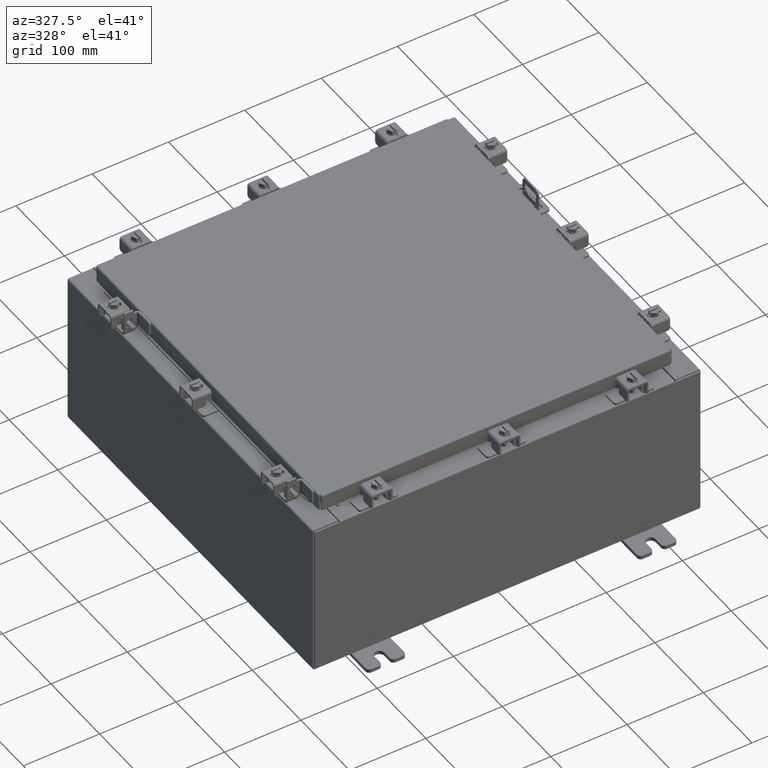
[diagram: clean part render]
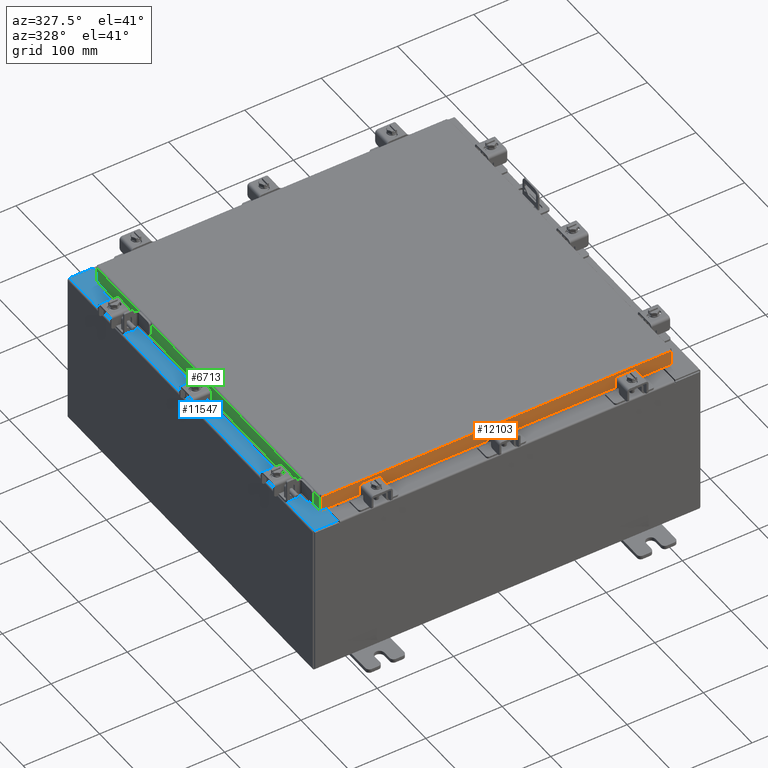
[diagram: same view with three faces highlighted in distinct colors, each labeled with its STEP entity id]
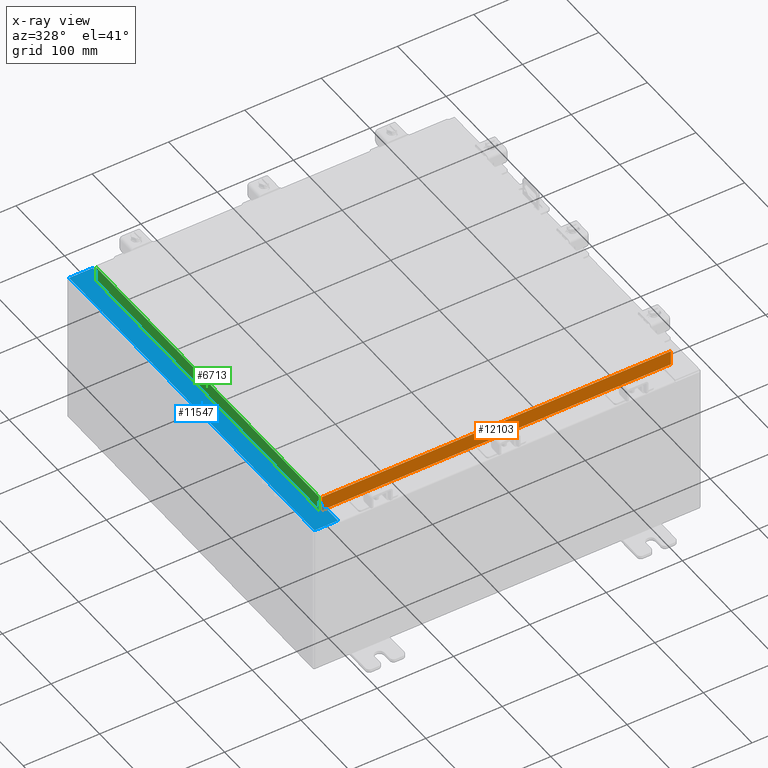
[diagram: x-ray of the same camera — body ghosted, the three highlighted faces saturated]
A machine part, auxiliary view with three faces highlighted in distinct colors.
The next image is the same camera in x-ray (body ghosted, the three faces saturated) — at least one of them is partly hidden behind the body in this view.
Their STEP definitions:

[orange] entity #12103 — the highlighted planar face has unit normal (-0, 1, -0).
#1455 = ORIENTED_EDGE ( 'NONE', *, *, #6380, .F. ) ;
#2338 = DIRECTION ( 'NONE',  ( -0.0000000000000000000, -2.818880942772360100E-015, -1.000000000000000000 ) ) ;
#2946 = VERTEX_POINT ( 'NONE', #19640 ) ;
#3671 = CARTESIAN_POINT ( 'NONE',  ( -8.255157864376267100, -9.094000000000001200, -0.8500000000000020900 ) ) ;
#3774 = VECTOR ( 'NONE', #15888, 39.37007874015748100 ) ;
#4089 = FACE_OUTER_BOUND ( 'NONE', #22401, .T. ) ;
#4571 = EDGE_CURVE ( 'NONE', #2946, #21468, #11397, .T. ) ;
#5543 = CARTESIAN_POINT ( 'NONE',  ( 9.005157864376270600, -9.093999999999999400, -0.08770000000000026400 ) ) ;
#5568 = DIRECTION ( 'NONE',  ( 1.000000000000000000, 3.387180227794633400E-031, -9.232666117091638000E-046 ) ) ;
#6197 = ORIENTED_EDGE ( 'NONE', *, *, #4571, .F. ) ;
#6380 = EDGE_CURVE ( 'NONE', #8356, #20213, #7528, .T. ) ;
#6917 = DIRECTION ( 'NONE',  ( 0.0000000000000000000, 2.818880942772360100E-015, 1.000000000000000000 ) ) ;
#7305 = VERTEX_POINT ( 'NONE', #5543 ) ;
#7422 = VECTOR ( 'NONE', #2338, 39.37007874015748100 ) ;
#7528 = LINE ( 'NONE', #7917, #20859 ) ;
#7914 = ORIENTED_EDGE ( 'NONE', *, *, #8136, .F. ) ;
#7917 = CARTESIAN_POINT ( 'NONE',  ( 9.094000000000001200, -9.094000000000001200, -0.8499999999999999800 ) ) ;
#8136 = EDGE_CURVE ( 'NONE', #21468, #8356, #10193, .T. ) ;
#8160 = LINE ( 'NONE', #21155, #11160 ) ;
#8333 = CARTESIAN_POINT ( 'NONE',  ( 8.255157864376267100, -9.094000000000001200, -0.8500000000000020900 ) ) ;
#8356 = VERTEX_POINT ( 'NONE', #3671 ) ;
#8716 = VECTOR ( 'NONE', #15576, 39.37007874015748100 ) ;
#9386 = EDGE_CURVE ( 'NONE', #7305, #2946, #21863, .T. ) ;
#10193 = LINE ( 'NONE', #17306, #22459 ) ;
#10331 = CARTESIAN_POINT ( 'NONE',  ( -9.005157864376267100, -9.093999999999999400, -0.08770000000000026400 ) ) ;
#10713 = VERTEX_POINT ( 'NONE', #10331 ) ;
#10827 = AXIS2_PLACEMENT_3D ( 'NONE', #12121, #17370, #6917 ) ;
#11160 = VECTOR ( 'NONE', #5568, 39.37007874015748100 ) ;
#11397 = LINE ( 'NONE', #16036, #3774 ) ;
#12103 = ADVANCED_FACE ( 'NONE', ( #4089 ), #15623, .F. ) ;
#12121 = CARTESIAN_POINT ( 'NONE',  ( 0.0000000000000000000, -9.093999999999999400, 2.622574073917692700E-014 ) ) ;
#12189 = EDGE_CURVE ( 'NONE', #10713, #7305, #8160, .T. ) ;
#12289 = CARTESIAN_POINT ( 'NONE',  ( -9.005157864376267100, -9.094000000000001200, -0.8499999999999977600 ) ) ;
#13184 = ORIENTED_EDGE ( 'NONE', *, *, #17301, .T. ) ;
#13834 = CARTESIAN_POINT ( 'NONE',  ( -9.005157864376267100, -9.093999999999999400, 2.622574073917692700E-014 ) ) ;
#15546 = DIRECTION ( 'NONE',  ( -1.000000000000000000, 0.0000000000000000000, 0.0000000000000000000 ) ) ;
#15576 = DIRECTION ( 'NONE',  ( 0.0000000000000000000, -2.818880942772360100E-015, -1.000000000000000000 ) ) ;
#15623 = PLANE ( 'NONE',  #10827 ) ;
#15888 = DIRECTION ( 'NONE',  ( -1.000000000000000000, 4.379057701015054300E-047, 1.201604571657912400E-016 ) ) ;
#16036 = CARTESIAN_POINT ( 'NONE',  ( 9.094000000000001200, -9.094000000000001200, -0.8499999999999999800 ) ) ;
#16310 = CARTESIAN_POINT ( 'NONE',  ( 9.005157864376268900, -9.093999999999999400, -0.07470000000000015500 ) ) ;
#16628 = DIRECTION ( 'NONE',  ( -1.000000000000000000, 4.379057701015054300E-047, 1.201604571657912400E-016 ) ) ;
#17301 = EDGE_CURVE ( 'NONE', #10713, #20213, #18013, .T. ) ;
#17306 = CARTESIAN_POINT ( 'NONE',  ( 8.255157864376267100, -9.094000000000001200, -0.8500000000000020900 ) ) ;
#17370 = DIRECTION ( 'NONE',  ( -3.387180227794633400E-031, 1.000000000000000000, -2.818880942772360100E-015 ) ) ;
#18013 = LINE ( 'NONE', #13834, #8716 ) ;
#18475 = ORIENTED_EDGE ( 'NONE', *, *, #12189, .F. ) ;
#19640 = CARTESIAN_POINT ( 'NONE',  ( 9.005157864376268900, -9.094000000000001200, -0.8499999999999999800 ) ) ;
#20213 = VERTEX_POINT ( 'NONE', #12289 ) ;
#20740 = ORIENTED_EDGE ( 'NONE', *, *, #9386, .F. ) ;
#20859 = VECTOR ( 'NONE', #16628, 39.37007874015748100 ) ;
#21155 = CARTESIAN_POINT ( 'NONE',  ( 9.094000000000001200, -9.093999999999999400, -0.08770000000000026400 ) ) ;
#21468 = VERTEX_POINT ( 'NONE', #8333 ) ;
#21863 = LINE ( 'NONE', #16310, #7422 ) ;
#22401 = EDGE_LOOP ( 'NONE', ( #18475, #13184, #1455, #7914, #6197, #20740 ) ) ;
#22459 = VECTOR ( 'NONE', #15546, 39.37007874015748100 ) ;

[blue] entity #11547 — the highlighted planar face has unit normal (0, 0, -1).
#170 = ORIENTED_EDGE ( 'NONE', *, *, #737, .T. ) ;
#391 = EDGE_CURVE ( 'NONE', #19526, #15650, #8759, .T. ) ;
#556 = CARTESIAN_POINT ( 'NONE',  ( -8.699700000000026600, -9.925300000000005300, 7.925300000000008900 ) ) ;
#654 = CARTESIAN_POINT ( 'NONE',  ( -8.750050000000030100, 8.631099999999998200, 7.925300000000008900 ) ) ;
#667 = ORIENTED_EDGE ( 'NONE', *, *, #12500, .F. ) ;
#737 = EDGE_CURVE ( 'NONE', #15650, #2399, #16670, .T. ) ;
#1194 = DIRECTION ( 'NONE',  ( -1.000000000000000000, 0.0000000000000000000, 0.0000000000000000000 ) ) ;
#2283 = LINE ( 'NONE', #20634, #11021 ) ;
#2384 = LINE ( 'NONE', #13372, #16327 ) ;
#2399 = VERTEX_POINT ( 'NONE', #22560 ) ;
#2862 = DIRECTION ( 'NONE',  ( -1.000000000000000000, -2.170286390199908100E-014, -2.170286390199908100E-014 ) ) ;
#2912 = DIRECTION ( 'NONE',  ( 1.000000000000000000, -2.170286390199814100E-014, 2.170286390199814100E-014 ) ) ;
#3081 = DIRECTION ( 'NONE',  ( 1.000000000000000000, 0.0000000000000000000, 0.0000000000000000000 ) ) ;
#3742 = DIRECTION ( 'NONE',  ( -7.132762385546365800E-015, -0.0000000000000000000, 1.000000000000000000 ) ) ;
#3833 = DIRECTION ( 'NONE',  ( 7.132762385546365800E-015, 0.0000000000000000000, -1.000000000000000000 ) ) ;
#3972 = CIRCLE ( 'NONE', #15536, 0.01867499999999949400 ) ;
#4633 = CARTESIAN_POINT ( 'NONE',  ( -8.699700000000028400, 8.631100000000000000, 7.925300000000008900 ) ) ;
#4846 = EDGE_CURVE ( 'NONE', #9511, #2399, #2384, .T. ) ;
#4941 = DIRECTION ( 'NONE',  ( -7.132762385546365800E-015, -0.0000000000000000000, 1.000000000000000000 ) ) ;
#5101 = DIRECTION ( 'NONE',  ( -1.100963394019027400E-016, 1.000000000000000000, -7.852910284722381300E-031 ) ) ;
#5564 = CARTESIAN_POINT ( 'NONE',  ( -8.750050000000030100, -8.631100000000008900, 7.925300000000008900 ) ) ;
#5778 = DIRECTION ( 'NONE',  ( -1.100963394019027400E-016, 1.000000000000000000, -7.852910284722381300E-031 ) ) ;
#6040 = VERTEX_POINT ( 'NONE', #10962 ) ;
#6803 = AXIS2_PLACEMENT_3D ( 'NONE', #7245, #3742, #14204 ) ;
#7245 = CARTESIAN_POINT ( 'NONE',  ( -8.750050000000030100, -8.612425000000007100, 7.925300000000007100 ) ) ;
#7256 = ORIENTED_EDGE ( 'NONE', *, *, #10114, .F. ) ;
#7353 = LINE ( 'NONE', #11645, #8438 ) ;
#7556 = CARTESIAN_POINT ( 'NONE',  ( -8.712700000000030100, 8.593750000000000000, 7.925300000000007100 ) ) ;
#7976 = CARTESIAN_POINT ( 'NONE',  ( -8.699700000000028400, 8.631100000000000000, 7.925300000000008900 ) ) ;
#8115 = VERTEX_POINT ( 'NONE', #15621 ) ;
#8363 = EDGE_CURVE ( 'NONE', #9073, #6040, #2283, .T. ) ;
#8438 = VECTOR ( 'NONE', #1194, 39.37007874015748100 ) ;
#8708 = LINE ( 'NONE', #17307, #9273 ) ;
#8759 = LINE ( 'NONE', #13829, #21578 ) ;
#9040 = VERTEX_POINT ( 'NONE', #11849 ) ;
#9073 = VERTEX_POINT ( 'NONE', #11922 ) ;
#9158 = EDGE_CURVE ( 'NONE', #9246, #21181, #11247, .T. ) ;
#9246 = VERTEX_POINT ( 'NONE', #7976 ) ;
#9273 = VECTOR ( 'NONE', #5101, 39.37007874015748100 ) ;
#9298 = FACE_OUTER_BOUND ( 'NONE', #11998, .T. ) ;
#9511 = VERTEX_POINT ( 'NONE', #5564 ) ;
#9616 = CIRCLE ( 'NONE', #6803, 0.01867499999999949400 ) ;
#9801 = DIRECTION ( 'NONE',  ( -0.0000000000000000000, 1.000000000000000000, -0.0000000000000000000 ) ) ;
#9964 = VECTOR ( 'NONE', #18019, 39.37007874015748100 ) ;
#10114 = EDGE_CURVE ( 'NONE', #8115, #9511, #9616, .T. ) ;
#10255 = CARTESIAN_POINT ( 'NONE',  ( -8.750050000000030100, 8.593749999999998200, 7.925300000000008900 ) ) ;
#10303 = ORIENTED_EDGE ( 'NONE', *, *, #15253, .F. ) ;
#10477 = AXIS2_PLACEMENT_3D ( 'NONE', #12533, #3833, #16030 ) ;
#10771 = PLANE ( 'NONE',  #10477 ) ;
#10962 = CARTESIAN_POINT ( 'NONE',  ( -9.912300000000028500, 9.925299999999996500, 7.925300000000000000 ) ) ;
#11021 = VECTOR ( 'NONE', #13654, 39.37007874015748100 ) ;
#11222 = ORIENTED_EDGE ( 'NONE', *, *, #4846, .F. ) ;
#11247 = LINE ( 'NONE', #4633, #20492 ) ;
#11547 = ADVANCED_FACE ( 'NONE', ( #9298 ), #10771, .F. ) ;
#11645 = CARTESIAN_POINT ( 'NONE',  ( -8.712700000000030100, -8.593750000000008900, 7.925300000000007100 ) ) ;
#11777 = ORIENTED_EDGE ( 'NONE', *, *, #9158, .F. ) ;
#11849 = CARTESIAN_POINT ( 'NONE',  ( -8.712700000000030100, -8.593750000000008900, 7.925300000000007100 ) ) ;
#11891 = EDGE_CURVE ( 'NONE', #9040, #8115, #7353, .T. ) ;
#11922 = CARTESIAN_POINT ( 'NONE',  ( -8.699700000000028400, 9.925299999999998200, 7.925300000000008900 ) ) ;
#11962 = ORIENTED_EDGE ( 'NONE', *, *, #11891, .F. ) ;
#11998 = EDGE_LOOP ( 'NONE', ( #11777, #21177, #15360, #667, #19928, #170, #11222, #7256, #11962, #14555, #10303, #14575 ) ) ;
#12085 = EDGE_CURVE ( 'NONE', #9246, #9073, #8708, .T. ) ;
#12500 = EDGE_CURVE ( 'NONE', #19526, #6040, #19592, .T. ) ;
#12533 = CARTESIAN_POINT ( 'NONE',  ( -5.679009539018269400E-014, 0.0000000000000000000, 7.925300000000071100 ) ) ;
#13145 = CARTESIAN_POINT ( 'NONE',  ( -8.712700000000030100, 8.593749999999998200, 7.925300000000007100 ) ) ;
#13153 = VERTEX_POINT ( 'NONE', #13145 ) ;
#13241 = CARTESIAN_POINT ( 'NONE',  ( -9.912300000000028500, 9.925299999999998200, 7.925300000000000000 ) ) ;
#13372 = CARTESIAN_POINT ( 'NONE',  ( -8.750050000000030100, -8.631100000000008900, 7.925300000000007100 ) ) ;
#13654 = DIRECTION ( 'NONE',  ( -1.000000000000000000, 0.0000000000000000000, -7.132762385546365800E-015 ) ) ;
#13829 = CARTESIAN_POINT ( 'NONE',  ( -1.098862002691304900E-013, -9.925300000000053300, 7.925300000000071100 ) ) ;
#14204 = DIRECTION ( 'NONE',  ( 1.000000000000000000, 0.0000000000000000000, 0.0000000000000000000 ) ) ;
#14349 = EDGE_CURVE ( 'NONE', #13153, #9040, #14637, .T. ) ;
#14435 = VECTOR ( 'NONE', #9801, 39.37007874015748100 ) ;
#14555 = ORIENTED_EDGE ( 'NONE', *, *, #14349, .F. ) ;
#14575 = ORIENTED_EDGE ( 'NONE', *, *, #14698, .F. ) ;
#14637 = LINE ( 'NONE', #7556, #9964 ) ;
#14698 = EDGE_CURVE ( 'NONE', #21181, #20832, #3972, .T. ) ;
#15253 = EDGE_CURVE ( 'NONE', #20832, #13153, #17874, .T. ) ;
#15360 = ORIENTED_EDGE ( 'NONE', *, *, #8363, .T. ) ;
#15384 = CARTESIAN_POINT ( 'NONE',  ( -8.750050000000030100, 8.612424999999998200, 7.925300000000007100 ) ) ;
#15536 = AXIS2_PLACEMENT_3D ( 'NONE', #15384, #4941, #17137 ) ;
#15571 = DIRECTION ( 'NONE',  ( 1.000000000000000000, -5.349571789159775100E-015, 7.132762385546365800E-015 ) ) ;
#15621 = CARTESIAN_POINT ( 'NONE',  ( -8.750050000000030100, -8.593750000000008900, 7.925300000000008900 ) ) ;
#15650 = VERTEX_POINT ( 'NONE', #556 ) ;
#16030 = DIRECTION ( 'NONE',  ( -1.000000000000000000, 0.0000000000000000000, -7.132762385546365800E-015 ) ) ;
#16215 = CARTESIAN_POINT ( 'NONE',  ( -8.699700000000026600, -9.578051238947299100E-016, 7.925300000000008900 ) ) ;
#16327 = VECTOR ( 'NONE', #2912, 39.37007874015748100 ) ;
#16670 = LINE ( 'NONE', #16215, #21836 ) ;
#17137 = DIRECTION ( 'NONE',  ( 1.000000000000000000, 0.0000000000000000000, 0.0000000000000000000 ) ) ;
#17307 = CARTESIAN_POINT ( 'NONE',  ( -8.699700000000026600, -9.578051238947299100E-016, 7.925300000000008900 ) ) ;
#17874 = LINE ( 'NONE', #20445, #21392 ) ;
#18019 = DIRECTION ( 'NONE',  ( -0.0000000000000000000, -1.000000000000000000, -0.0000000000000000000 ) ) ;
#19310 = CARTESIAN_POINT ( 'NONE',  ( -9.912300000000028500, -9.925299999999998200, 7.925300000000000000 ) ) ;
#19526 = VERTEX_POINT ( 'NONE', #19310 ) ;
#19592 = LINE ( 'NONE', #13241, #14435 ) ;
#19928 = ORIENTED_EDGE ( 'NONE', *, *, #391, .T. ) ;
#20445 = CARTESIAN_POINT ( 'NONE',  ( -8.750050000000030100, 8.593749999999998200, 7.925300000000007100 ) ) ;
#20492 = VECTOR ( 'NONE', #2862, 39.37007874015748100 ) ;
#20634 = CARTESIAN_POINT ( 'NONE',  ( -5.679009539018269400E-014, 9.925299999999998200, 7.925300000000071100 ) ) ;
#20832 = VERTEX_POINT ( 'NONE', #10255 ) ;
#21177 = ORIENTED_EDGE ( 'NONE', *, *, #12085, .T. ) ;
#21181 = VERTEX_POINT ( 'NONE', #654 ) ;
#21392 = VECTOR ( 'NONE', #3081, 39.37007874015748100 ) ;
#21578 = VECTOR ( 'NONE', #15571, 39.37007874015748100 ) ;
#21836 = VECTOR ( 'NONE', #5778, 39.37007874015748100 ) ;
#22560 = CARTESIAN_POINT ( 'NONE',  ( -8.699700000000026600, -8.631100000000007100, 7.925300000000008900 ) ) ;

[green] entity #6713 — the highlighted planar face has unit normal (1, 0, -0).
#115 = VECTOR ( 'NONE', #9564, 39.37007874015748100 ) ;
#150 = DIRECTION ( 'NONE',  ( 1.000000000000000000, 3.387180227794634300E-031, -2.818880942772360500E-015 ) ) ;
#666 = LINE ( 'NONE', #19026, #9411 ) ;
#892 = LINE ( 'NONE', #9041, #13186 ) ;
#1110 = VERTEX_POINT ( 'NONE', #6940 ) ;
#1476 = FACE_OUTER_BOUND ( 'NONE', #19776, .T. ) ;
#1565 = DIRECTION ( 'NONE',  ( 4.379057701015053300E-047, 1.000000000000000000, 1.201604571657912400E-016 ) ) ;
#2332 = CARTESIAN_POINT ( 'NONE',  ( -9.094000000000001200, -9.093999999999999400, -0.8499999999999999800 ) ) ;
#2780 = EDGE_CURVE ( 'NONE', #15863, #3188, #21834, .T. ) ;
#2826 = ORIENTED_EDGE ( 'NONE', *, *, #21725, .F. ) ;
#2834 = CARTESIAN_POINT ( 'NONE',  ( -9.094000000000001200, -9.005157864376261800, -0.8499999999999999800 ) ) ;
#3188 = VERTEX_POINT ( 'NONE', #6241 ) ;
#3284 = VECTOR ( 'NONE', #1565, 39.37007874015748100 ) ;
#4308 = CARTESIAN_POINT ( 'NONE',  ( -9.093999999999999400, -9.005157864376267100, -0.07470000000000015500 ) ) ;
#4902 = EDGE_CURVE ( 'NONE', #1110, #21558, #15213, .T. ) ;
#5395 = VECTOR ( 'NONE', #18418, 39.37007874015748100 ) ;
#5666 = ORIENTED_EDGE ( 'NONE', *, *, #7070, .F. ) ;
#6223 = CARTESIAN_POINT ( 'NONE',  ( -9.093999999999999400, -9.093999999999999400, -0.08770000000000026400 ) ) ;
#6241 = CARTESIAN_POINT ( 'NONE',  ( -9.093999999999997600, -8.255157864376261800, -0.8500000000000020900 ) ) ;
#6713 = ADVANCED_FACE ( 'NONE', ( #1476 ), #20804, .F. ) ;
#6940 = CARTESIAN_POINT ( 'NONE',  ( -9.093999999999999400, 9.005157864376267100, -0.08770000000000136000 ) ) ;
#7070 = EDGE_CURVE ( 'NONE', #21558, #15863, #14043, .T. ) ;
#7339 = VECTOR ( 'NONE', #7720, 39.37007874015748100 ) ;
#7720 = DIRECTION ( 'NONE',  ( -2.818880942772360500E-015, 6.982962677686265900E-015, -1.000000000000000000 ) ) ;
#8514 = ORIENTED_EDGE ( 'NONE', *, *, #4902, .F. ) ;
#9041 = CARTESIAN_POINT ( 'NONE',  ( -9.094000000000001200, -9.093999999999999400, -0.8499999999999999800 ) ) ;
#9411 = VECTOR ( 'NONE', #18950, 39.37007874015748100 ) ;
#9564 = DIRECTION ( 'NONE',  ( -2.818880942772360500E-015, 6.982962677686265900E-015, -1.000000000000000000 ) ) ;
#12039 = ORIENTED_EDGE ( 'NONE', *, *, #2780, .F. ) ;
#12549 = DIRECTION ( 'NONE',  ( 4.379057701015053300E-047, 1.000000000000000000, 1.201604571657912400E-016 ) ) ;
#13186 = VECTOR ( 'NONE', #12549, 39.37007874015748100 ) ;
#13574 = ORIENTED_EDGE ( 'NONE', *, *, #20891, .F. ) ;
#14043 = LINE ( 'NONE', #4308, #115 ) ;
#14370 = AXIS2_PLACEMENT_3D ( 'NONE', #22552, #150, #19054 ) ;
#15213 = LINE ( 'NONE', #6223, #5395 ) ;
#15585 = VERTEX_POINT ( 'NONE', #17803 ) ;
#15863 = VERTEX_POINT ( 'NONE', #2834 ) ;
#16425 = CARTESIAN_POINT ( 'NONE',  ( -9.093999999999999400, 9.005157864376267100, 8.851187499472213200E-014 ) ) ;
#17161 = LINE ( 'NONE', #16425, #7339 ) ;
#17640 = EDGE_CURVE ( 'NONE', #1110, #20381, #17161, .T. ) ;
#17803 = CARTESIAN_POINT ( 'NONE',  ( -9.093999999999997600, 8.255157864376267100, -0.8500000000000020900 ) ) ;
#17960 = ORIENTED_EDGE ( 'NONE', *, *, #17640, .T. ) ;
#18418 = DIRECTION ( 'NONE',  ( 5.080770341691952100E-031, -1.000000000000000000, 6.008022858289562200E-017 ) ) ;
#18950 = DIRECTION ( 'NONE',  ( -0.0000000000000000000, 1.000000000000000000, -0.0000000000000000000 ) ) ;
#19026 = CARTESIAN_POINT ( 'NONE',  ( -9.093999999999997600, -8.255157864376263500, -0.8500000000000020900 ) ) ;
#19054 = DIRECTION ( 'NONE',  ( -2.818880942772360500E-015, 0.0000000000000000000, -1.000000000000000000 ) ) ;
#19776 = EDGE_LOOP ( 'NONE', ( #8514, #17960, #2826, #13574, #12039, #5666 ) ) ;
#20381 = VERTEX_POINT ( 'NONE', #21413 ) ;
#20804 = PLANE ( 'NONE',  #14370 ) ;
#20891 = EDGE_CURVE ( 'NONE', #3188, #15585, #666, .T. ) ;
#21413 = CARTESIAN_POINT ( 'NONE',  ( -9.094000000000001200, 9.005157864376274200, -0.8499999999999977600 ) ) ;
#21558 = VERTEX_POINT ( 'NONE', #22502 ) ;
#21725 = EDGE_CURVE ( 'NONE', #15585, #20381, #892, .T. ) ;
#21834 = LINE ( 'NONE', #2332, #3284 ) ;
#22502 = CARTESIAN_POINT ( 'NONE',  ( -9.093999999999999400, -9.005157864376268900, -0.08770000000000026400 ) ) ;
#22552 = CARTESIAN_POINT ( 'NONE',  ( -9.093999999999999400, 0.0000000000000000000, 2.622574073917692700E-014 ) ) ;